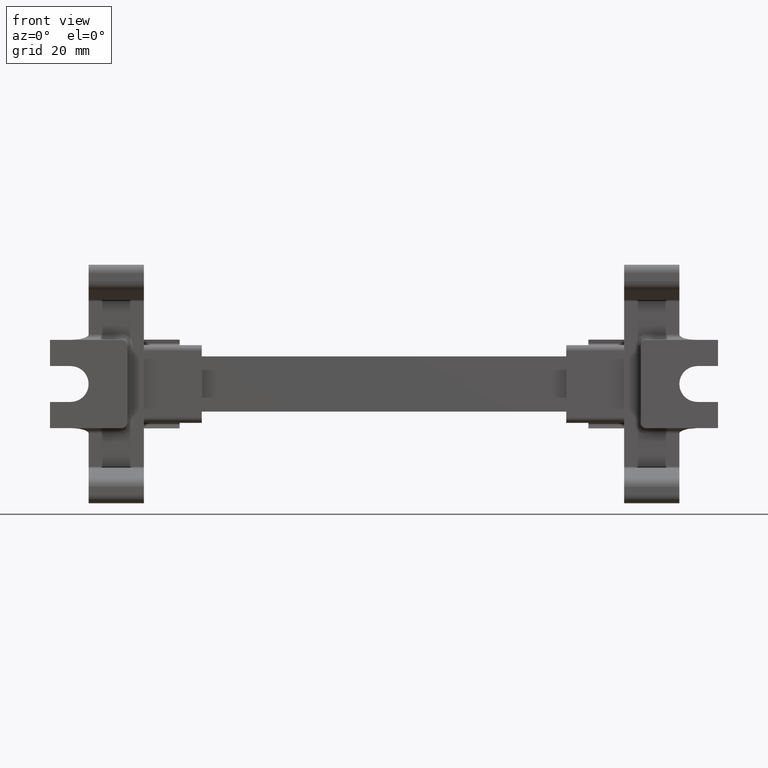
[diagram: clean part render]
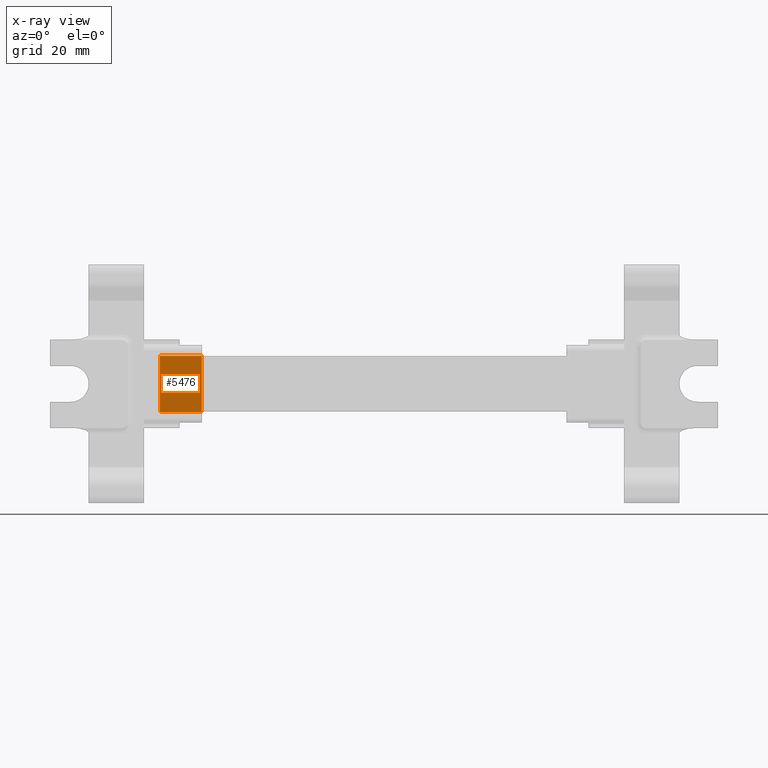
[diagram: x-ray — body ghosted, one internal face saturated and labeled with its STEP entity id]
A machine part, front view, then the same camera in x-ray: the body is ghosted and one INTERNAL B-rep face — a face not visible from any outside direction — is saturated and labeled: STEP entity #5476.
In plain terms, the highlighted planar face has unit normal (0, 1, -0).
Its self-contained STEP definition (entity closure, byte-faithful):
#299 = VECTOR ( 'NONE', #14857, 1000.000000000000000 ) ;
#1544 = ORIENTED_EDGE ( 'NONE', *, *, #7837, .T. ) ;
#1546 = ORIENTED_EDGE ( 'NONE', *, *, #7866, .F. ) ;
#1688 = EDGE_CURVE ( 'NONE', #3119, #3145, #14887, .T. ) ;
#3093 = VERTEX_POINT ( 'NONE', #8450 ) ;
#3119 = VERTEX_POINT ( 'NONE', #8491 ) ;
#3136 = VERTEX_POINT ( 'NONE', #8502 ) ;
#3145 = VERTEX_POINT ( 'NONE', #8497 ) ;
#5238 = EDGE_LOOP ( 'NONE', ( #1544, #15579, #15558, #1546 ) ) ;
#5476 = ADVANCED_FACE ( 'NONE', ( #10556 ), #10535, .T. ) ;
#7837 = EDGE_CURVE ( 'NONE', #3136, #3119, #11603, .T. ) ;
#7860 = EDGE_CURVE ( 'NONE', #3145, #3093, #11697, .T. ) ;
#7866 = EDGE_CURVE ( 'NONE', #3136, #3093, #11723, .T. ) ;
#8450 = CARTESIAN_POINT ( 'NONE',  ( -49.05269769582427800, 46.46882648293099300, 43.16894126927110900 ) ) ;
#8491 = CARTESIAN_POINT ( 'NONE',  ( -41.46331934428533800, 46.46882648293090100, 32.98635869811145200 ) ) ;
#8497 = CARTESIAN_POINT ( 'NONE',  ( -49.05269769582423600, 46.46882648293102800, 32.98635869811145900 ) ) ;
#8502 = CARTESIAN_POINT ( 'NONE',  ( -41.46331934428537400, 46.46882648293090100, 43.16894126927118000 ) ) ;
#10523 = DIRECTION ( 'NONE',  ( 1.771379689657750100E-014, 1.000000000000000000, -6.844917884415865300E-029 ) ) ;
#10527 = CARTESIAN_POINT ( 'NONE',  ( -19.05401174997805200, 46.46882648293050300, 33.07764998369154300 ) ) ;
#10535 = PLANE ( 'NONE',  #17647 ) ;
#10542 = DIRECTION ( 'NONE',  ( -1.000000000000000000, 1.771379689657750100E-014, 0.0000000000000000000 ) ) ;
#10556 = FACE_OUTER_BOUND ( 'NONE', #5238, .T. ) ;
#11601 = DIRECTION ( 'NONE',  ( 3.514663655315069800E-015, -5.575460396012712700E-029, -1.000000000000000000 ) ) ;
#11603 = LINE ( 'NONE', #11624, #17996 ) ;
#11624 = CARTESIAN_POINT ( 'NONE',  ( -41.46331934428542400, 46.46882648293090100, 57.81335666716609700 ) ) ;
#11696 = CARTESIAN_POINT ( 'NONE',  ( -49.05269769582423600, 46.46882648293100700, 43.07764998369150100 ) ) ;
#11697 = LINE ( 'NONE', #11696, #17952 ) ;
#11707 = CARTESIAN_POINT ( 'NONE',  ( -27.05269769582425400, 46.46882648293090100, 43.16894126927129300 ) ) ;
#11715 = DIRECTION ( 'NONE',  ( -1.000000000000000000, 0.0000000000000000000, -7.729569084860471100E-015 ) ) ;
#11723 = LINE ( 'NONE', #11707, #17964 ) ;
#11726 = DIRECTION ( 'NONE',  ( -2.318029420568694800E-017, 4.106110235624508500E-031, 1.000000000000000000 ) ) ;
#14857 = DIRECTION ( 'NONE',  ( -1.000000000000000000, 1.771379689657750100E-014, 0.0000000000000000000 ) ) ;
#14887 = LINE ( 'NONE', #14893, #299 ) ;
#14893 = CARTESIAN_POINT ( 'NONE',  ( -19.05401174997805200, 46.46882648293050300, 32.98635869811145200 ) ) ;
#15558 = ORIENTED_EDGE ( 'NONE', *, *, #7860, .T. ) ;
#15579 = ORIENTED_EDGE ( 'NONE', *, *, #1688, .T. ) ;
#17647 = AXIS2_PLACEMENT_3D ( 'NONE', #10527, #10523, #10542 ) ;
#17952 = VECTOR ( 'NONE', #11726, 1000.000000000000000 ) ;
#17964 = VECTOR ( 'NONE', #11715, 1000.000000000000000 ) ;
#17996 = VECTOR ( 'NONE', #11601, 1000.000000000000000 ) ;